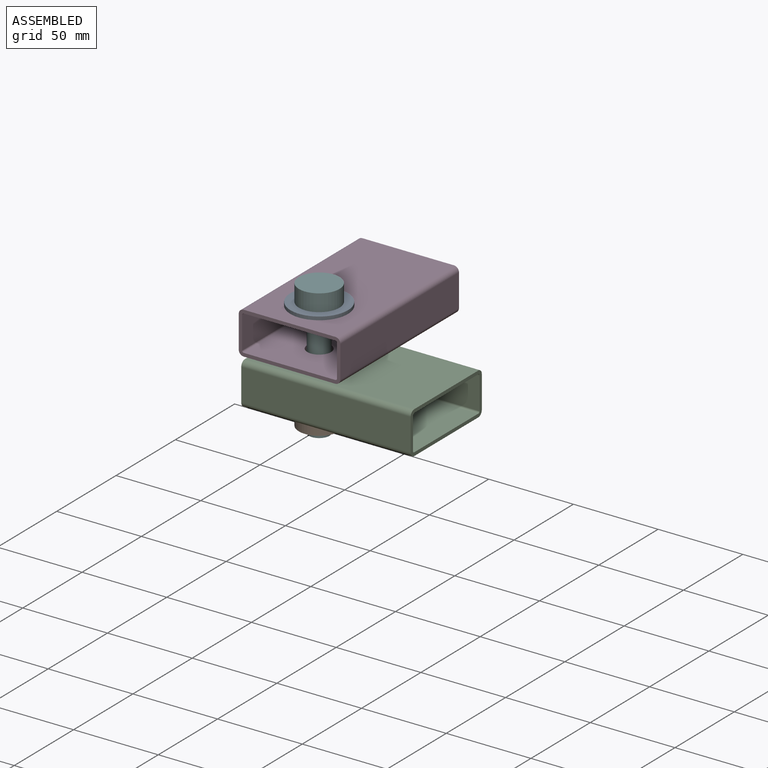
[diagram: assembled view]
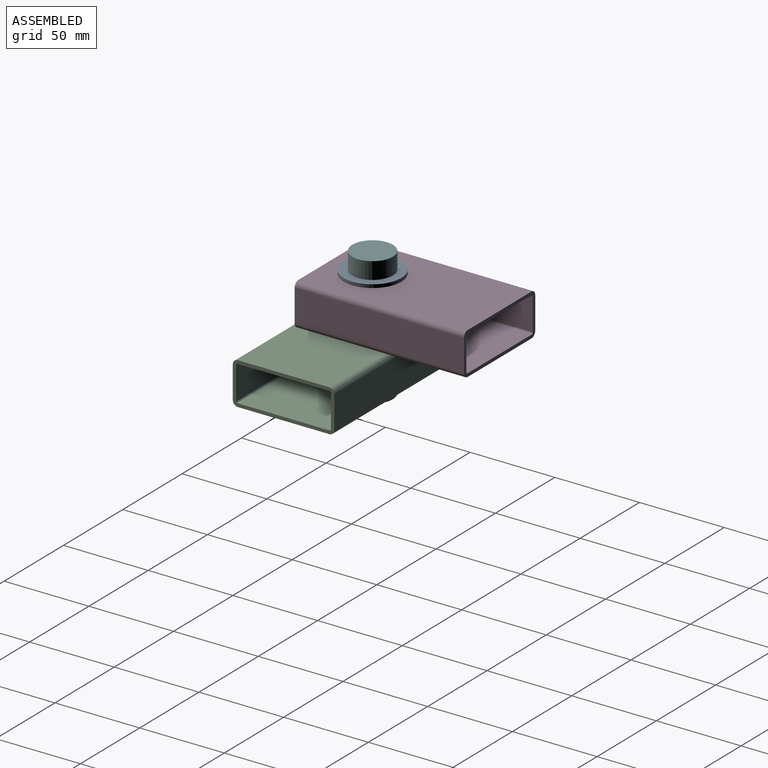
[diagram: assembled view, second angle]
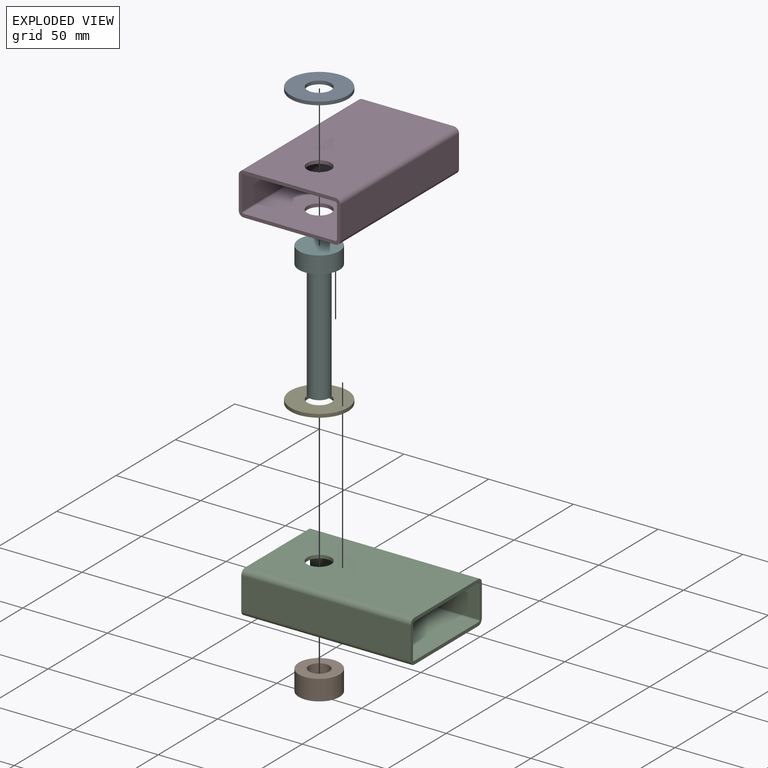
[diagram: exploded view]
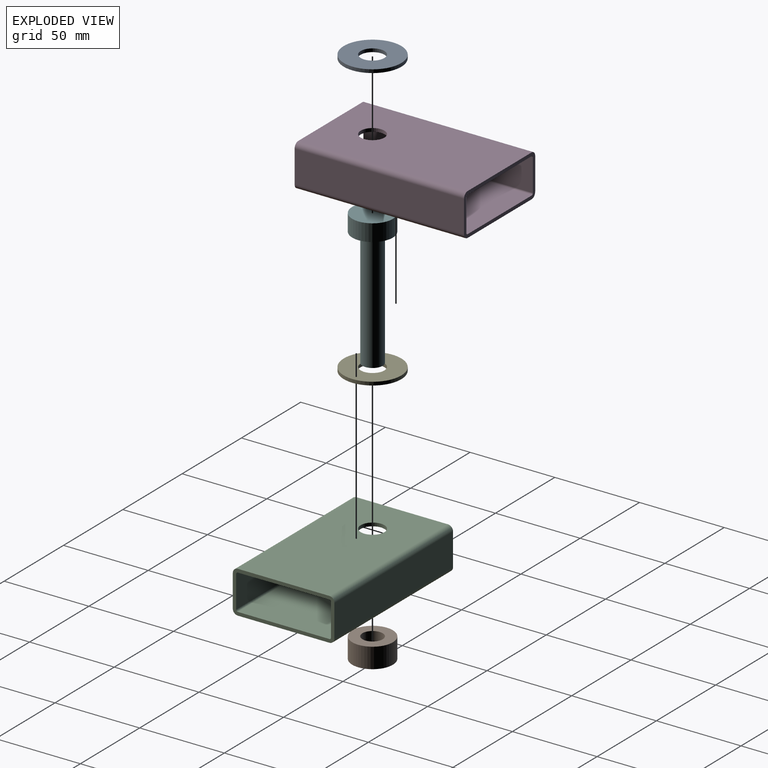
[diagram: exploded view, second angle]
ASSEMBLY  parts=6 mates=5
PART A: 4 faces, bbox 34x34x2 mm
  f0: cylinder r=17mm len=34mm, axis (0,0,1), area 213.6mm2, adj f2,f3
  f1: cylinder r=7mm len=14mm, axis (0,0,1), area 88mm2, adj f2,f3
  f2: plane 34x34mm, normal (0,0,-1), area 754mm2, adj f0,f1
  f3: plane 34x34mm, normal (0,0,1), area 754mm2, adj f0,f1
PART B: 4 faces, bbox 24x24x12 mm
  f0: cylinder r=12mm len=24mm, axis (0,0,1), area 904.8mm2, adj f2,f3
  f1: cylinder r=6mm len=12mm, axis (0,0,1), area 452.4mm2, adj f2,f3
  f2: plane 24x24mm, normal (0,0,-1), area 339.3mm2, adj f0,f1
  f3: plane 24x24mm, normal (0,0,1), area 339.3mm2, adj f0,f1
PART C: 20 faces, bbox 100x60x25 mm
  f0: plane 60x25mm, normal (1,0,0), area 317.1mm2, adj f2,f3,f4,f5,f6,f7,f8,f9
  f1: plane 60x25mm, normal (-1,0,0), area 317.1mm2, adj f2,f3,f4,f5,f6,f7,f8,f9
  f2: plane 100x54mm, normal (0,0,1), area 5246.1mm2, adj f0,f1,f6,f9,f19
  f3: plane 100x19mm, normal (0,-1,0), area 1900mm2, adj f0,f1,f6,f7
  f4: plane 100x54mm, normal (0,0,-1), area 5246.1mm2, adj f0,f1,f7,f8,f18
  f5: plane 100x19mm, normal (0,1,0), area 1900mm2, adj f0,f1,f8,f9
  f6: cylinder r=3mm len=100mm, axis (1,0,0), area 471.2mm2, adj f0,f1,f2,f3
  f7: cylinder r=3mm len=100mm, axis (-1,0,0), area 471.2mm2, adj f0,f1,f3,f4
  f8: cylinder r=3mm len=100mm, axis (1,0,0), area 471.2mm2, adj f0,f1,f4,f5
  f9: cylinder r=3mm len=100mm, axis (-1,0,0), area 471.2mm2, adj f0,f1,f2,f5
  f10: plane 100x54mm, normal (0,0,-1), area 5246.1mm2, adj f0,f1,f14,f17,f19
  f11: plane 100x19mm, normal (0,1,0), area 1900mm2, adj f0,f1,f14,f15
  f12: plane 100x54mm, normal (0,0,1), area 5246.1mm2, adj f0,f1,f15,f16,f18
  f13: plane 100x19mm, normal (0,-1,0), area 1900mm2, adj f0,f1,f16,f17
  f14: cylinder r=1mm len=100mm, axis (1,0,0), area 157.1mm2, adj f0,f1,f10,f11
  f15: cylinder r=1mm len=100mm, axis (-1,0,0), area 157.1mm2, adj f0,f1,f11,f12
  f16: cylinder r=1mm len=100mm, axis (1,0,0), area 157.1mm2, adj f0,f1,f12,f13
  f17: cylinder r=1mm len=100mm, axis (-1,0,0), area 157.1mm2, adj f0,f1,f10,f13
  f18: cylinder r=7mm len=14mm, axis (0,0,1), area 88mm2, adj f4,f12
  f19: cylinder r=7mm len=14mm, axis (0,0,1), area 88mm2, adj f2,f10
PART D: same geometry as C
PART E: same geometry as A
PART F: 5 faces, bbox 24x24x80 mm
  f0: cylinder r=12mm len=24mm, axis (0,0,-1), area 754mm2, adj f1,f2
  f1: plane 24x24mm, normal (0,0,1), area 452.4mm2, adj f0
  f2: plane 24x24mm, normal (0,0,-1), area 339.3mm2, adj f0,f3
  f3: cylinder r=6mm len=70mm, axis (0,0,1), area 2638.9mm2, adj f2,f4
  f4: plane 12x12mm, normal (0,0,-1), area 113.1mm2, adj f3
PLACE A t=(25,0,27)mm
PLACE B t=(25,0,27)mm
PLACE C at identity fixed
PLACE D rot(axis=(0,0,1),90deg) t=(25,-25,25)mm
PLACE E t=(25,0,-25)mm
PLACE F t=(25,0,27)mm
MATE fastened B.f1 <-> E.f1  axis (0,0,1) through (25,0,-27)mm
MATE fastened A.f1 <-> D.f18  axis (0,0,-1) through (25,0,25)mm
MATE fastened E.f1 <-> C.f18  axis (0,0,1) through (25,0,-25)mm
MATE fastened D.f18 <-> C.f18  axis (0,0,-1) through (25,0,0)mm
MATE fastened F.f0 <-> A.f0  axis (0,0,-1) through (25,0,27)mm
